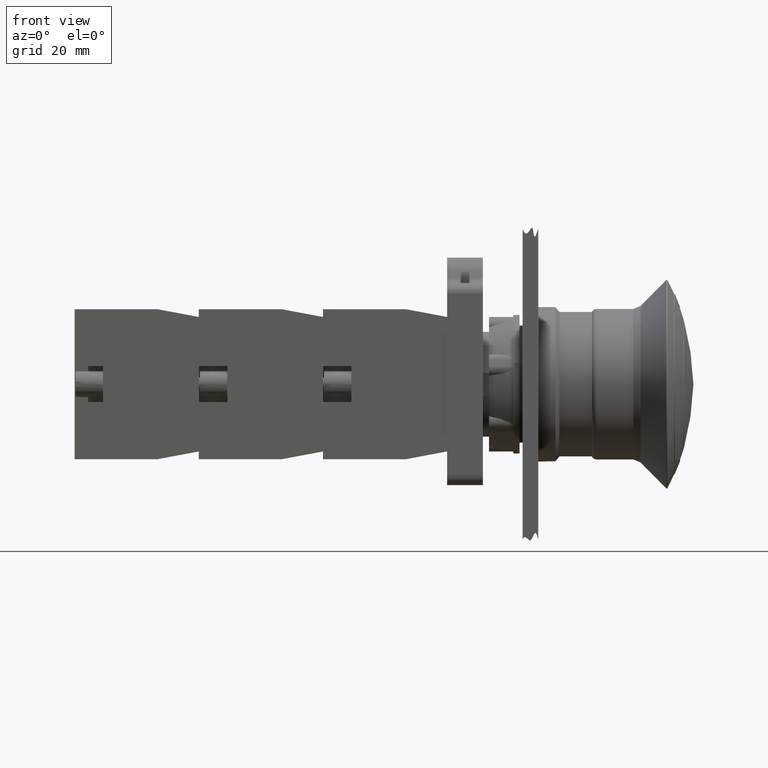
[diagram: clean part render]
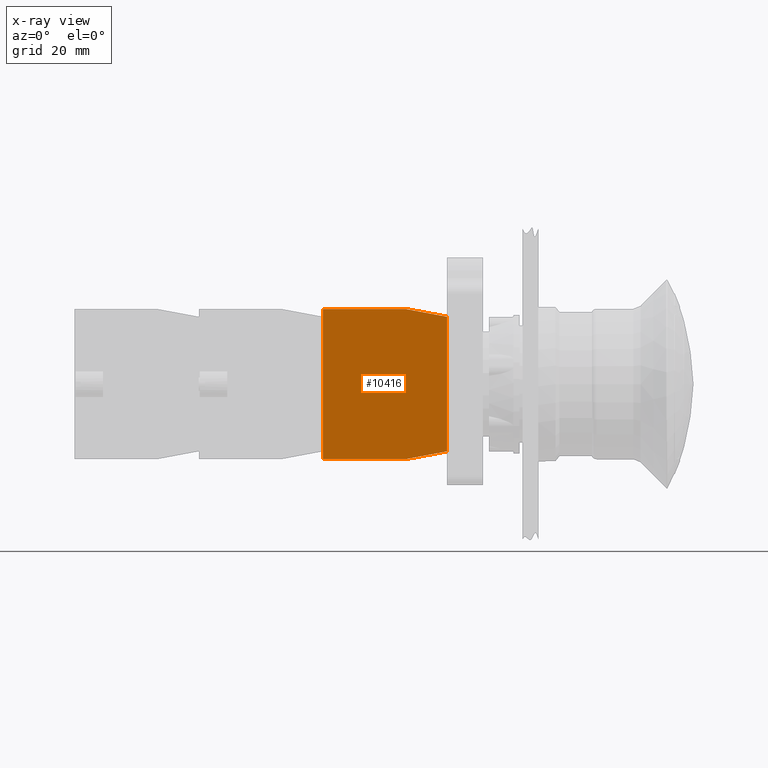
[diagram: x-ray — body ghosted, one internal face saturated and labeled with its STEP entity id]
A machine part, front view, then the same camera in x-ray: the body is ghosted and one INTERNAL B-rep face — a face not visible from any outside direction — is saturated and labeled: STEP entity #10416.
In plain terms, the highlighted planar face has unit normal (-0, -1, -0).
Its self-contained STEP definition (entity closure, byte-faithful):
#8721=CARTESIAN_POINT('',(-44.936741828918471,23.797073323279623,0.0));
#8722=VERTEX_POINT('',#8721);
#8729=CARTESIAN_POINT('',(-44.936741828918457,7.797073323279626,0.0));
#8730=VERTEX_POINT('',#8729);
#8731=CARTESIAN_POINT('',(-44.936741828918457,7.797073323279626,0.0));
#8732=DIRECTION('',(0.0,1.0,0.0));
#8733=VECTOR('',#8732,15.999999999999996);
#8734=LINE('',#8731,#8733);
#8735=EDGE_CURVE('',#8730,#8722,#8734,.T.);
#8912=CARTESIAN_POINT('',(-43.436741828918457,-0.202926676720380,0.0));
#8913=VERTEX_POINT('',#8912);
#8920=CARTESIAN_POINT('',(-17.436741828918457,-0.202926676720377,0.0));
#8921=VERTEX_POINT('',#8920);
#8922=CARTESIAN_POINT('',(-17.436741828918457,-0.202926676720377,0.0));
#8923=DIRECTION('',(-1.0,0.0,0.0));
#8924=VECTOR('',#8923,26.0);
#8925=LINE('',#8922,#8924);
#8926=EDGE_CURVE('',#8921,#8913,#8925,.T.);
#10270=CARTESIAN_POINT('',(-15.936741828918466,23.797073323279626,0.0));
#10271=VERTEX_POINT('',#10270);
#10278=CARTESIAN_POINT('',(-44.936741828918471,23.797073323279623,0.0));
#10279=DIRECTION('',(1.0,0.0,0.0));
#10280=VECTOR('',#10279,29.000000000000007);
#10281=LINE('',#10278,#10280);
#10282=EDGE_CURVE('',#8722,#10271,#10281,.T.);
#10318=CARTESIAN_POINT('',(-15.936741828918466,7.797073323279626,0.0));
#10319=VERTEX_POINT('',#10318);
#10326=CARTESIAN_POINT('',(-15.936741828918466,23.797073323279626,0.0));
#10327=DIRECTION('',(0.0,-1.0,0.0));
#10328=VECTOR('',#10327,16.0);
#10329=LINE('',#10326,#10328);
#10330=EDGE_CURVE('',#10271,#10319,#10329,.T.);
#10358=CARTESIAN_POINT('',(-15.936741828918466,7.797073323279626,0.0));
#10359=DIRECTION('',(-0.184288535050184,-0.982872186934322,0.0));
#10360=VECTOR('',#10359,8.139410298049855);
#10361=LINE('',#10358,#10360);
#10362=EDGE_CURVE('',#10319,#8921,#10361,.T.);
#10375=CARTESIAN_POINT('',(-43.436741828918457,-0.202926676720380,0.0));
#10376=DIRECTION('',(-0.184288535050185,0.982872186934322,0.0));
#10377=VECTOR('',#10376,8.139410298049860);
#10378=LINE('',#10375,#10377);
#10379=EDGE_CURVE('',#8913,#8730,#10378,.T.);
#10403=CARTESIAN_POINT('',(-30.436741828918464,12.124046801833057,0.0));
#10404=DIRECTION('',(0.0,0.0,1.0));
#10405=DIRECTION('',(1.0,0.0,0.0));
#10406=AXIS2_PLACEMENT_3D('',#10403,#10404,#10405);
#10407=PLANE('',#10406);
#10408=ORIENTED_EDGE('',*,*,#10282,.T.);
#10409=ORIENTED_EDGE('',*,*,#10330,.T.);
#10410=ORIENTED_EDGE('',*,*,#10362,.T.);
#10411=ORIENTED_EDGE('',*,*,#8926,.T.);
#10412=ORIENTED_EDGE('',*,*,#10379,.T.);
#10413=ORIENTED_EDGE('',*,*,#8735,.T.);
#10414=EDGE_LOOP('',(#10408,#10409,#10410,#10411,#10412,#10413));
#10415=FACE_OUTER_BOUND('',#10414,.T.);
#10416=ADVANCED_FACE('',(#10415),#10407,.F.);